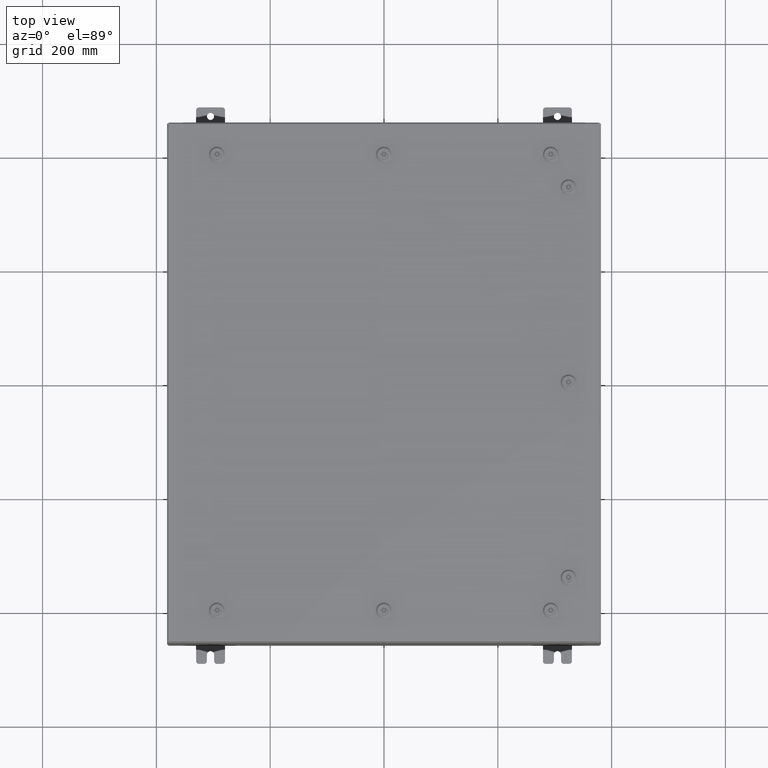
[diagram: clean part render]
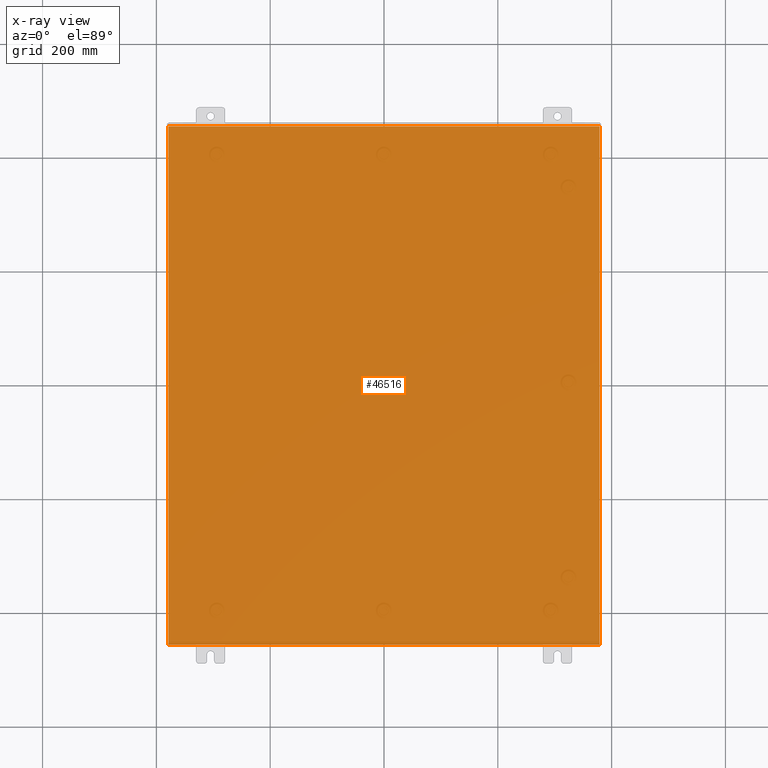
[diagram: x-ray — body ghosted, one internal face saturated and labeled with its STEP entity id]
A machine part, top view, then the same camera in x-ray: the body is ghosted and one INTERNAL B-rep face — a face not visible from any outside direction — is saturated and labeled: STEP entity #46516.
In plain terms, the highlighted planar face has unit normal (0, 0, -1).
Its self-contained STEP definition (entity closure, byte-faithful):
#384 = EDGE_CURVE ( 'NONE', #25087, #16782, #34080, .T. ) ;
#1022 = LINE ( 'NONE', #41999, #2612 ) ;
#2344 = CARTESIAN_POINT ( 'NONE',  ( -14.91230000000000200, -17.92530000000000000, 4.481938114605432000E-017 ) ) ;
#2612 = VECTOR ( 'NONE', #31314, 39.37007874015748100 ) ;
#2707 = ORIENTED_EDGE ( 'NONE', *, *, #7306, .T. ) ;
#4986 = ORIENTED_EDGE ( 'NONE', *, *, #32141, .F. ) ;
#7058 = VECTOR ( 'NONE', #54053, 39.37007874015748100 ) ;
#7306 = EDGE_CURVE ( 'NONE', #25087, #47032, #1022, .T. ) ;
#9926 = FACE_OUTER_BOUND ( 'NONE', #56155, .T. ) ;
#11042 = CARTESIAN_POINT ( 'NONE',  ( -14.91230000000000200, -17.92530000000000000, 4.481938114605432000E-017 ) ) ;
#15025 = DIRECTION ( 'NONE',  ( -1.000000000000000000, 0.0000000000000000000, -0.0000000000000000000 ) ) ;
#16142 = DIRECTION ( 'NONE',  ( -0.0000000000000000000, 1.000000000000000000, -0.0000000000000000000 ) ) ;
#16782 = VERTEX_POINT ( 'NONE', #37577 ) ;
#17088 = DIRECTION ( 'NONE',  ( 1.000000000000000000, 0.0000000000000000000, 0.0000000000000000000 ) ) ;
#17250 = VECTOR ( 'NONE', #16142, 39.37007874015748100 ) ;
#21499 = ORIENTED_EDGE ( 'NONE', *, *, #56143, .T. ) ;
#22002 = CARTESIAN_POINT ( 'NONE',  ( -15.00000000000000400, -17.92530000000000000, 0.0000000000000000000 ) ) ;
#24994 = AXIS2_PLACEMENT_3D ( 'NONE', #65785, #45521, #15025 ) ;
#25087 = VERTEX_POINT ( 'NONE', #58246 ) ;
#31009 = ORIENTED_EDGE ( 'NONE', *, *, #384, .F. ) ;
#31314 = DIRECTION ( 'NONE',  ( -1.000000000000000000, -0.0000000000000000000, -0.0000000000000000000 ) ) ;
#32141 = EDGE_CURVE ( 'NONE', #39426, #47032, #57902, .T. ) ;
#34080 = LINE ( 'NONE', #43774, #7058 ) ;
#37577 = CARTESIAN_POINT ( 'NONE',  ( 14.91229999999999800, -17.92530000000000000, 4.247169927649909300E-016 ) ) ;
#38835 = VECTOR ( 'NONE', #17088, 39.37007874015748100 ) ;
#39426 = VERTEX_POINT ( 'NONE', #2344 ) ;
#40381 = PLANE ( 'NONE',  #24994 ) ;
#41999 = CARTESIAN_POINT ( 'NONE',  ( -15.00000000000000400, 17.92530000000000000, 0.0000000000000000000 ) ) ;
#43774 = CARTESIAN_POINT ( 'NONE',  ( 14.91229999999999800, 17.92530000000000000, -2.518422369159242700E-015 ) ) ;
#45521 = DIRECTION ( 'NONE',  ( 0.0000000000000000000, 0.0000000000000000000, -1.000000000000000000 ) ) ;
#46516 = ADVANCED_FACE ( 'NONE', ( #9926 ), #40381, .F. ) ;
#47032 = VERTEX_POINT ( 'NONE', #54584 ) ;
#52427 = LINE ( 'NONE', #22002, #38835 ) ;
#54053 = DIRECTION ( 'NONE',  ( -0.0000000000000000000, -1.000000000000000000, 8.208677865577646300E-017 ) ) ;
#54584 = CARTESIAN_POINT ( 'NONE',  ( -14.91230000000000200, 17.92530000000000000, 4.481938114605432000E-017 ) ) ;
#56143 = EDGE_CURVE ( 'NONE', #39426, #16782, #52427, .T. ) ;
#56155 = EDGE_LOOP ( 'NONE', ( #4986, #21499, #31009, #2707 ) ) ;
#57902 = LINE ( 'NONE', #11042, #17250 ) ;
#58246 = CARTESIAN_POINT ( 'NONE',  ( 14.91229999999999800, 17.92530000000000000, -2.518422369159242700E-015 ) ) ;
#65785 = CARTESIAN_POINT ( 'NONE',  ( 0.0000000000000000000, 0.0000000000000000000, 0.0000000000000000000 ) ) ;